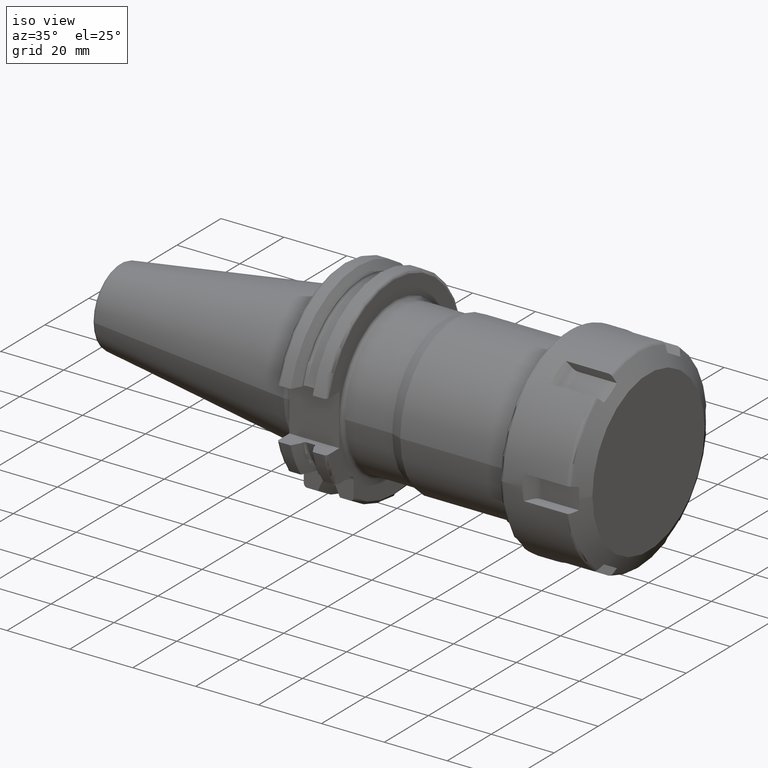
[diagram: clean part render]
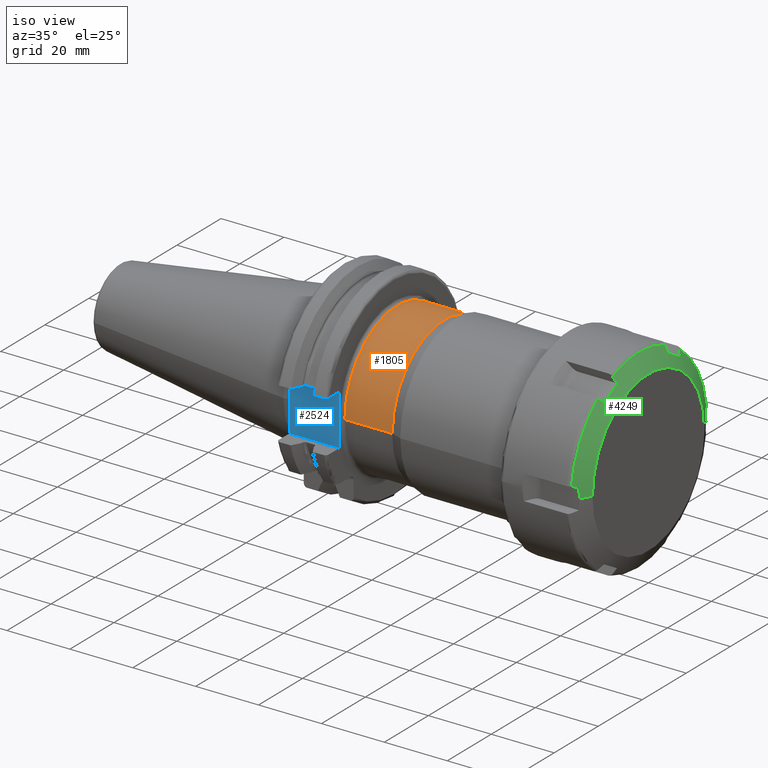
[diagram: same view with three faces highlighted in distinct colors, each labeled with its STEP entity id]
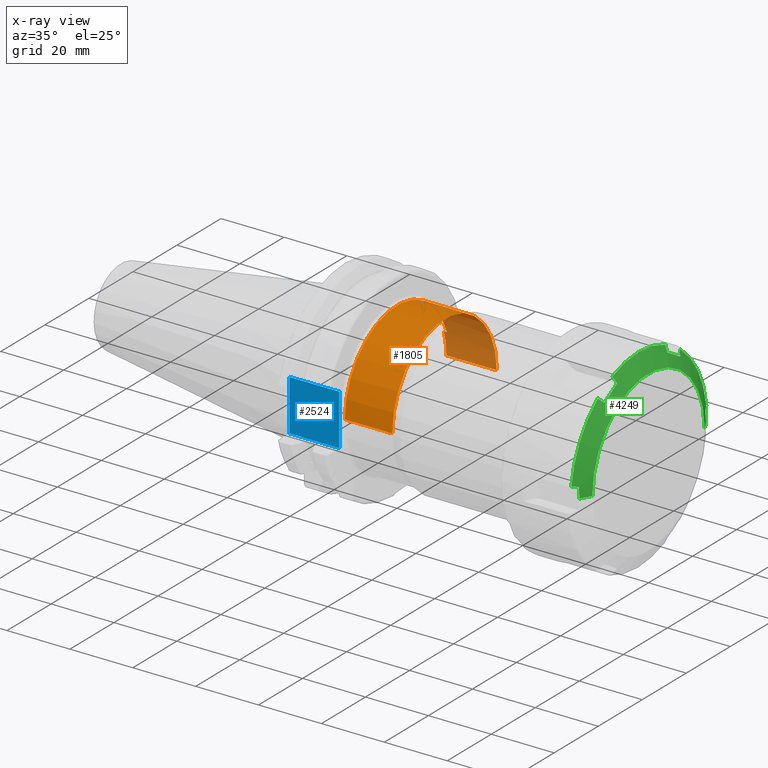
[diagram: x-ray of the same camera — body ghosted, the three highlighted faces saturated]
A machine part, iso view with three faces highlighted in distinct colors.
The next image is the same camera in x-ray (body ghosted, the three faces saturated) — at least one of them is partly hidden behind the body in this view.
Their STEP definitions:

[orange] entity #1805 — the highlighted cylindrical surface (partial cylindrical patch) has radius 23.75 mm, axis along (1, 0, 0).
#203=CARTESIAN_POINT('',(2.005E1,0.E0,0.E0));
#204=DIRECTION('',(1.E0,0.E0,0.E0));
#205=DIRECTION('',(0.E0,9.494736842105E-1,3.138466552183E-1));
#206=AXIS2_PLACEMENT_3D('',#203,#204,#205);
#208=DIRECTION('',(-1.E0,0.E0,-1.421085471520E-14));
#209=VECTOR('',#208,1.E0);
#210=CARTESIAN_POINT('',(2.005E1,2.255E1,7.453858061434E0));
#211=LINE('',#210,#209);
#212=CARTESIAN_POINT('',(3.51E1,0.E0,0.E0));
#213=DIRECTION('',(1.E0,0.E0,0.E0));
#214=DIRECTION('',(0.E0,1.E0,0.E0));
#215=AXIS2_PLACEMENT_3D('',#212,#213,#214);
#217=CARTESIAN_POINT('',(1.905E1,0.E0,0.E0));
#218=DIRECTION('',(1.E0,0.E0,0.E0));
#219=DIRECTION('',(0.E0,1.E0,0.E0));
#220=AXIS2_PLACEMENT_3D('',#217,#218,#219);
#232=DIRECTION('',(-1.E0,0.E0,-3.514658110506E-13));
#233=VECTOR('',#232,1.505E1);
#234=CARTESIAN_POINT('',(3.51E1,-2.375E1,0.E0));
#235=LINE('',#234,#233);
#241=DIRECTION('',(-1.E0,0.E0,0.E0));
#242=VECTOR('',#241,1.605E1);
#243=CARTESIAN_POINT('',(3.51E1,2.375E1,0.E0));
#244=LINE('',#243,#242);
#1477=CARTESIAN_POINT('',(3.51E1,2.375E1,0.E0));
#1479=VERTEX_POINT('',#1477);
#1480=CARTESIAN_POINT('',(1.905E1,2.375E1,0.E0));
#1481=VERTEX_POINT('',#1480);
#1483=CARTESIAN_POINT('',(3.51E1,-2.375E1,0.E0));
#1485=VERTEX_POINT('',#1483);
#1486=CARTESIAN_POINT('',(2.005E1,-2.375E1,0.E0));
#1488=VERTEX_POINT('',#1486);
#1490=CARTESIAN_POINT('',(2.005E1,2.255E1,7.453858061434E0));
#1491=VERTEX_POINT('',#1490);
#1501=CARTESIAN_POINT('',(1.905E1,2.255E1,7.453858061434E0));
#1502=VERTEX_POINT('',#1501);
#1788=CARTESIAN_POINT('',(1.57525E1,0.E0,0.E0));
#1789=DIRECTION('',(1.E0,0.E0,0.E0));
#1790=DIRECTION('',(0.E0,-1.E0,0.E0));
#1791=AXIS2_PLACEMENT_3D('',#1788,#1789,#1790);
#1792=CYLINDRICAL_SURFACE('',#1791,2.375E1);
#1793=ORIENTED_EDGE('',*,*,#1775,.F.);
#1794=ORIENTED_EDGE('',*,*,#1686,.T.);
#1796=ORIENTED_EDGE('',*,*,#1795,.F.);
#1798=ORIENTED_EDGE('',*,*,#1797,.F.);
#1800=ORIENTED_EDGE('',*,*,#1799,.T.);
#1802=ORIENTED_EDGE('',*,*,#1801,.T.);
#1803=EDGE_LOOP('',(#1793,#1794,#1796,#1798,#1800,#1802));
#1804=FACE_OUTER_BOUND('',#1803,.F.);
#1805=ADVANCED_FACE('',(#1804),#1792,.T.);
#207=CIRCLE('',#206,2.375E1);
#216=CIRCLE('',#215,2.375E1);
#221=CIRCLE('',#220,2.375E1);
#1686=EDGE_CURVE('',#1491,#1502,#211,.T.);
#1775=EDGE_CURVE('',#1491,#1488,#207,.T.);
#1795=EDGE_CURVE('',#1481,#1502,#221,.T.);
#1797=EDGE_CURVE('',#1479,#1481,#244,.T.);
#1799=EDGE_CURVE('',#1479,#1485,#216,.T.);
#1801=EDGE_CURVE('',#1485,#1488,#235,.T.);

[blue] entity #2524 — the highlighted planar face has unit normal (0, 1, 0).
#150=DIRECTION('',(0.E0,0.E0,1.E0));
#151=VECTOR('',#150,1.62E1);
#152=CARTESIAN_POINT('',(1.905E1,-2.485E1,-8.1E0));
#153=LINE('',#152,#151);
#358=DIRECTION('',(-1.E0,0.E0,0.E0));
#359=VECTOR('',#358,1.585E1);
#360=CARTESIAN_POINT('',(1.905E1,-2.485E1,8.1E0));
#361=LINE('',#360,#359);
#636=DIRECTION('',(0.E0,0.E0,1.E0));
#637=VECTOR('',#636,1.62E1);
#638=CARTESIAN_POINT('',(3.2E0,-2.485E1,-8.1E0));
#639=LINE('',#638,#637);
#865=DIRECTION('',(-1.E0,0.E0,0.E0));
#866=VECTOR('',#865,1.585E1);
#867=CARTESIAN_POINT('',(1.905E1,-2.485E1,-8.1E0));
#868=LINE('',#867,#866);
#1402=CARTESIAN_POINT('',(1.905E1,-2.485E1,-8.1E0));
#1404=VERTEX_POINT('',#1402);
#1405=CARTESIAN_POINT('',(1.905E1,-2.485E1,8.1E0));
#1406=VERTEX_POINT('',#1405);
#1430=CARTESIAN_POINT('',(3.2E0,-2.485E1,-8.1E0));
#1432=VERTEX_POINT('',#1430);
#1433=CARTESIAN_POINT('',(3.2E0,-2.485E1,8.1E0));
#1434=VERTEX_POINT('',#1433);
#2513=CARTESIAN_POINT('',(1.905E1,-2.485E1,-8.1E0));
#2514=DIRECTION('',(0.E0,1.E0,0.E0));
#2515=DIRECTION('',(0.E0,0.E0,1.E0));
#2516=AXIS2_PLACEMENT_3D('',#2513,#2514,#2515);
#2517=PLANE('',#2516);
#2518=ORIENTED_EDGE('',*,*,#1759,.F.);
#2519=ORIENTED_EDGE('',*,*,#2472,.T.);
#2520=ORIENTED_EDGE('',*,*,#2268,.T.);
#2521=ORIENTED_EDGE('',*,*,#2041,.F.);
#2522=EDGE_LOOP('',(#2518,#2519,#2520,#2521));
#2523=FACE_OUTER_BOUND('',#2522,.F.);
#2524=ADVANCED_FACE('',(#2523),#2517,.F.);
#1759=EDGE_CURVE('',#1404,#1406,#153,.T.);
#2041=EDGE_CURVE('',#1406,#1434,#361,.T.);
#2268=EDGE_CURVE('',#1432,#1434,#639,.T.);
#2472=EDGE_CURVE('',#1404,#1432,#868,.T.);

[green] entity #4249 — the highlighted conical surface has half-angle 60 deg.
#3166=DIRECTION('',(-5.E-1,-8.660254037844E-1,0.E0));
#3167=VECTOR('',#3166,3.752776749692E0);
#3168=CARTESIAN_POINT('',(2.55E1,-2.55E1,0.E0));
#3169=LINE('',#3168,#3167);
#3175=DIRECTION('',(-5.E-1,8.660254037844E-1,0.E0));
#3176=VECTOR('',#3175,3.752776749692E0);
#3177=CARTESIAN_POINT('',(2.55E1,2.55E1,0.E0));
#3178=LINE('',#3177,#3176);
#3451=CARTESIAN_POINT('',(2.351130782476E1,-2.874999999997E1,3.35E0));
#3452=CARTESIAN_POINT('',(2.353617695757E1,-2.874999999997E1,2.977828809184E0));
#3453=CARTESIAN_POINT('',(2.357773662637E1,-2.874999999997E1,2.233458033279E0));
#3454=CARTESIAN_POINT('',(2.361525848375E1,-2.874999999997E1,1.116817767542E0));
#3455=CARTESIAN_POINT('',(2.362361162515E1,-2.874999999997E1,
3.722872262064E-1));
#3456=CARTESIAN_POINT('',(2.362361162515E1,-2.874999999997E1,0.E0));
#3458=CARTESIAN_POINT('',(2.239674230313E1,-3.063769284335E1,3.820654686622E0));
#3459=CARTESIAN_POINT('',(2.258533438069E1,-3.031843804101E1,3.741055524357E0));
#3460=CARTESIAN_POINT('',(2.295968976826E1,-2.968456909419E1,3.583014245782E0));
#3461=CARTESIAN_POINT('',(2.332838053240E1,-2.905997751876E1,3.427286075687E0));
#3462=CARTESIAN_POINT('',(2.351130782476E1,-2.874999999997E1,3.35E0));
#3464=CARTESIAN_POINT('',(2.239674230313E1,0.E0,0.E0));
#3465=DIRECTION('',(-1.E0,0.E0,0.E0));
#3466=DIRECTION('',(0.E0,-9.923139382473E-1,1.237459007814E-1));
#3467=AXIS2_PLACEMENT_3D('',#3464,#3465,#3466);
#3469=CARTESIAN_POINT('',(2.351130782476E1,-1.727618510266E1,2.322323035877E1));
#3470=CARTESIAN_POINT('',(2.332842823305E1,-1.749804769833E1,2.345297580209E1));
#3471=CARTESIAN_POINT('',(2.295978520802E1,-1.794515018410E1,2.391596397947E1));
#3472=CARTESIAN_POINT('',(2.258538211756E1,-1.839901028735E1,2.438594987460E1));
#3473=CARTESIAN_POINT('',(2.239674230313E1,-1.862763043938E1,2.462269297237E1));
#3475=CARTESIAN_POINT('',(2.351130782476E1,-1.147381489730E1,2.657323035877E1));
#3476=CARTESIAN_POINT('',(2.356105051412E1,-1.211849164162E1,2.620102606690E1));
#3477=CARTESIAN_POINT('',(2.362777625606E1,-1.340784245763E1,2.545661902620E1));
#3478=CARTESIAN_POINT('',(2.362777583851E1,-1.534217003691E1,2.433983447760E1));
#3479=CARTESIAN_POINT('',(2.356105010187E1,-1.663151370114E1,2.359543156598E1));
#3480=CARTESIAN_POINT('',(2.351130782476E1,-1.727618510266E1,2.322323035877E1));
#3482=CARTESIAN_POINT('',(2.239674230313E1,-1.201006240397E1,2.844334765900E1));
#3483=CARTESIAN_POINT('',(2.258533438069E1,-1.191936989944E1,2.812706530876E1));
#3484=CARTESIAN_POINT('',(2.295968976826E1,-1.173930318813E1,2.749909805885E1));
#3485=CARTESIAN_POINT('',(2.332838053240E1,-1.156187195180E1,2.688032180249E1));
#3486=CARTESIAN_POINT('',(2.351130782476E1,-1.147381489730E1,2.657323035877E1));
#3488=CARTESIAN_POINT('',(2.239674230313E1,0.E0,0.E0));
#3489=DIRECTION('',(-1.E0,0.E0,0.E0));
#3490=DIRECTION('',(0.E0,-3.889898754327E-1,9.212420294422E-1));
#3491=AXIS2_PLACEMENT_3D('',#3488,#3489,#3490);
#3493=CARTESIAN_POINT('',(2.351130782476E1,1.147381489730E1,2.657323035877E1));
#3494=CARTESIAN_POINT('',(2.332842823305E1,1.156184898978E1,2.688024172443E1));
#3495=CARTESIAN_POINT('',(2.295978520802E1,1.173925727016E1,2.749893792389E1));
#3496=CARTESIAN_POINT('',(2.258538211756E1,1.191934694315E1,2.812698525064E1));
#3497=CARTESIAN_POINT('',(2.239674230313E1,1.201006240397E1,2.844334765900E1));
#3499=CARTESIAN_POINT('',(2.351130782476E1,1.727618510266E1,2.322323035877E1));
#3500=CARTESIAN_POINT('',(2.356105051412E1,1.663150835835E1,2.359543465064E1));
#3501=CARTESIAN_POINT('',(2.362777625606E1,1.534215754233E1,2.433984169135E1));
#3502=CARTESIAN_POINT('',(2.362777583851E1,1.340782996305E1,2.545662623995E1));
#3503=CARTESIAN_POINT('',(2.356105010187E1,1.211848629883E1,2.620102915156E1));
#3504=CARTESIAN_POINT('',(2.351130782476E1,1.147381489730E1,2.657323035877E1));
#3506=CARTESIAN_POINT('',(2.239674230313E1,1.862763043938E1,2.462269297237E1));
#3507=CARTESIAN_POINT('',(2.258533438069E1,1.839906814157E1,2.438600978440E1));
#3508=CARTESIAN_POINT('',(2.295968976826E1,1.794526590606E1,2.391608381307E1));
#3509=CARTESIAN_POINT('',(2.332838053240E1,1.749810556696E1,2.345303572681E1));
#3510=CARTESIAN_POINT('',(2.351130782476E1,1.727618510266E1,2.322323035877E1));
#3512=CARTESIAN_POINT('',(2.239674230313E1,0.E0,0.E0));
#3513=DIRECTION('',(-1.E0,0.E0,0.E0));
#3514=DIRECTION('',(0.E0,6.033240628145E-1,7.974961286608E-1));
#3515=AXIS2_PLACEMENT_3D('',#3512,#3513,#3514);
#3517=CARTESIAN_POINT('',(2.351130782476E1,2.874999999997E1,3.35E0));
#3518=CARTESIAN_POINT('',(2.332842823305E1,2.905989668812E1,3.427265922344E0));
#3519=CARTESIAN_POINT('',(2.295978520802E1,2.968440745426E1,3.582973944421E0));
#3520=CARTESIAN_POINT('',(2.258538211756E1,3.031835723049E1,3.741035376033E0));
#3521=CARTESIAN_POINT('',(2.239674230313E1,3.063769284335E1,3.820654686622E0));
#3523=CARTESIAN_POINT('',(2.362361162515E1,2.874999999997E1,0.E0));
#3524=CARTESIAN_POINT('',(2.362361162515E1,2.874999999997E1,3.723033754199E-1));
#3525=CARTESIAN_POINT('',(2.361525781864E1,2.874999999997E1,1.116855572672E0));
#3526=CARTESIAN_POINT('',(2.357773435590E1,2.874999999997E1,2.233506677949E0));
#3527=CARTESIAN_POINT('',(2.353617556265E1,2.874999999997E1,2.977849684408E0));
#3528=CARTESIAN_POINT('',(2.351130782476E1,2.874999999997E1,3.35E0));
#3530=CARTESIAN_POINT('',(2.55E1,0.E0,0.E0));
#3531=DIRECTION('',(1.E0,0.E0,0.E0));
#3532=DIRECTION('',(0.E0,1.E0,0.E0));
#3533=AXIS2_PLACEMENT_3D('',#3530,#3531,#3532);
#3813=CARTESIAN_POINT('',(2.55E1,2.55E1,0.E0));
#3814=CARTESIAN_POINT('',(2.55E1,-2.55E1,0.E0));
#3815=VERTEX_POINT('',#3813);
#3816=VERTEX_POINT('',#3814);
#3825=VERTEX_POINT('',#3517);
#3826=VERTEX_POINT('',#3521);
#3827=VERTEX_POINT('',#3523);
#3851=VERTEX_POINT('',#3493);
#3852=VERTEX_POINT('',#3497);
#3853=VERTEX_POINT('',#3499);
#3854=VERTEX_POINT('',#3506);
#3866=VERTEX_POINT('',#3469);
#3867=VERTEX_POINT('',#3473);
#3868=VERTEX_POINT('',#3475);
#3869=VERTEX_POINT('',#3482);
#3881=VERTEX_POINT('',#3451);
#3882=VERTEX_POINT('',#3456);
#3883=VERTEX_POINT('',#3458);
#4218=CARTESIAN_POINT('',(2.394837115156E1,0.E0,0.E0));
#4219=DIRECTION('',(-1.E0,0.E0,0.E0));
#4220=DIRECTION('',(0.E0,1.E0,0.E0));
#4221=AXIS2_PLACEMENT_3D('',#4218,#4219,#4220);
#4222=CONICAL_SURFACE('',#4221,2.818749999998E1,6.E1);
#4224=ORIENTED_EDGE('',*,*,#4223,.F.);
#4226=ORIENTED_EDGE('',*,*,#4225,.F.);
#4227=ORIENTED_EDGE('',*,*,#4125,.T.);
#4229=ORIENTED_EDGE('',*,*,#4228,.F.);
#4231=ORIENTED_EDGE('',*,*,#4230,.F.);
#4233=ORIENTED_EDGE('',*,*,#4232,.F.);
#4234=ORIENTED_EDGE('',*,*,#4109,.T.);
#4236=ORIENTED_EDGE('',*,*,#4235,.F.);
#4237=ORIENTED_EDGE('',*,*,#4211,.F.);
#4238=ORIENTED_EDGE('',*,*,#4182,.F.);
#4239=ORIENTED_EDGE('',*,*,#4093,.T.);
#4241=ORIENTED_EDGE('',*,*,#4240,.F.);
#4243=ORIENTED_EDGE('',*,*,#4242,.F.);
#4244=ORIENTED_EDGE('',*,*,#3965,.F.);
#4245=ORIENTED_EDGE('',*,*,#3932,.T.);
#4246=ORIENTED_EDGE('',*,*,#3962,.T.);
#4247=EDGE_LOOP('',(#4224,#4226,#4227,#4229,#4231,#4233,#4234,#4236,#4237,#4238,
#4239,#4241,#4243,#4244,#4245,#4246));
#4248=FACE_OUTER_BOUND('',#4247,.F.);
#4249=ADVANCED_FACE('',(#4248),#4222,.T.);
#3457=B_SPLINE_CURVE_WITH_KNOTS('',3,(#3451,#3452,#3453,#3454,#3455,#3456),
.UNSPECIFIED.,.F.,.F.,(4,1,1,4),(0.E0,3.333333333333E-1,6.666666666667E-1,1.E0),
.UNSPECIFIED.);
#3463=B_SPLINE_CURVE_WITH_KNOTS('',3,(#3458,#3459,#3460,#3461,#3462),
.UNSPECIFIED.,.F.,.F.,(4,1,4),(0.E0,5.E-1,1.E0),.UNSPECIFIED.);
#3468=CIRCLE('',#3467,3.087499999997E1);
#3474=B_SPLINE_CURVE_WITH_KNOTS('',3,(#3469,#3470,#3471,#3472,#3473),
.UNSPECIFIED.,.F.,.F.,(4,1,4),(0.E0,5.E-1,1.E0),.UNSPECIFIED.);
#3481=B_SPLINE_CURVE_WITH_KNOTS('',3,(#3475,#3476,#3477,#3478,#3479,#3480),
.UNSPECIFIED.,.F.,.F.,(4,1,1,4),(0.E0,3.333333333333E-1,6.666666666667E-1,1.E0),
.UNSPECIFIED.);
#3487=B_SPLINE_CURVE_WITH_KNOTS('',3,(#3482,#3483,#3484,#3485,#3486),
.UNSPECIFIED.,.F.,.F.,(4,1,4),(0.E0,5.E-1,1.E0),.UNSPECIFIED.);
#3492=CIRCLE('',#3491,3.087499999997E1);
#3498=B_SPLINE_CURVE_WITH_KNOTS('',3,(#3493,#3494,#3495,#3496,#3497),
.UNSPECIFIED.,.F.,.F.,(4,1,4),(0.E0,5.E-1,1.E0),.UNSPECIFIED.);
#3505=B_SPLINE_CURVE_WITH_KNOTS('',3,(#3499,#3500,#3501,#3502,#3503,#3504),
.UNSPECIFIED.,.F.,.F.,(4,1,1,4),(0.E0,3.333333333333E-1,6.666666666667E-1,1.E0),
.UNSPECIFIED.);
#3511=B_SPLINE_CURVE_WITH_KNOTS('',3,(#3506,#3507,#3508,#3509,#3510),
.UNSPECIFIED.,.F.,.F.,(4,1,4),(0.E0,5.E-1,1.E0),.UNSPECIFIED.);
#3516=CIRCLE('',#3515,3.087499999997E1);
#3522=B_SPLINE_CURVE_WITH_KNOTS('',3,(#3517,#3518,#3519,#3520,#3521),
.UNSPECIFIED.,.F.,.F.,(4,1,4),(0.E0,5.E-1,1.E0),.UNSPECIFIED.);
#3529=B_SPLINE_CURVE_WITH_KNOTS('',3,(#3523,#3524,#3525,#3526,#3527,#3528),
.UNSPECIFIED.,.F.,.F.,(4,1,1,4),(0.E0,3.333333333333E-1,6.666666666667E-1,1.E0),
.UNSPECIFIED.);
#3534=CIRCLE('',#3533,2.55E1);
#3932=EDGE_CURVE('',#3815,#3816,#3534,.T.);
#3962=EDGE_CURVE('',#3816,#3882,#3169,.T.);
#3965=EDGE_CURVE('',#3815,#3827,#3178,.T.);
#4093=EDGE_CURVE('',#3854,#3826,#3516,.T.);
#4109=EDGE_CURVE('',#3869,#3852,#3492,.T.);
#4125=EDGE_CURVE('',#3883,#3867,#3468,.T.);
#4182=EDGE_CURVE('',#3854,#3853,#3511,.T.);
#4211=EDGE_CURVE('',#3853,#3851,#3505,.T.);
#4223=EDGE_CURVE('',#3881,#3882,#3457,.T.);
#4225=EDGE_CURVE('',#3883,#3881,#3463,.T.);
#4228=EDGE_CURVE('',#3866,#3867,#3474,.T.);
#4230=EDGE_CURVE('',#3868,#3866,#3481,.T.);
#4232=EDGE_CURVE('',#3869,#3868,#3487,.T.);
#4235=EDGE_CURVE('',#3851,#3852,#3498,.T.);
#4240=EDGE_CURVE('',#3825,#3826,#3522,.T.);
#4242=EDGE_CURVE('',#3827,#3825,#3529,.T.);